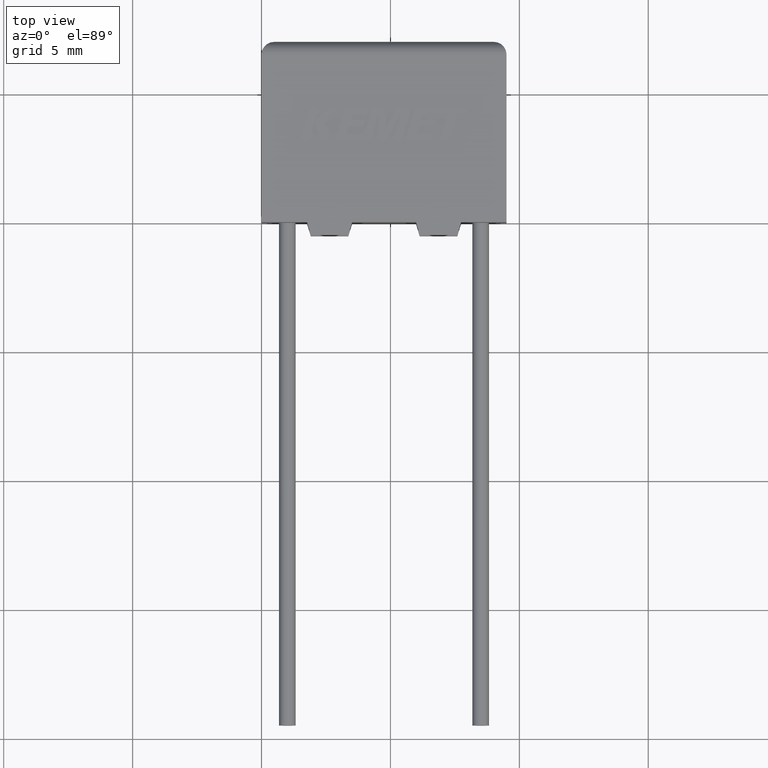
[diagram: clean part render]
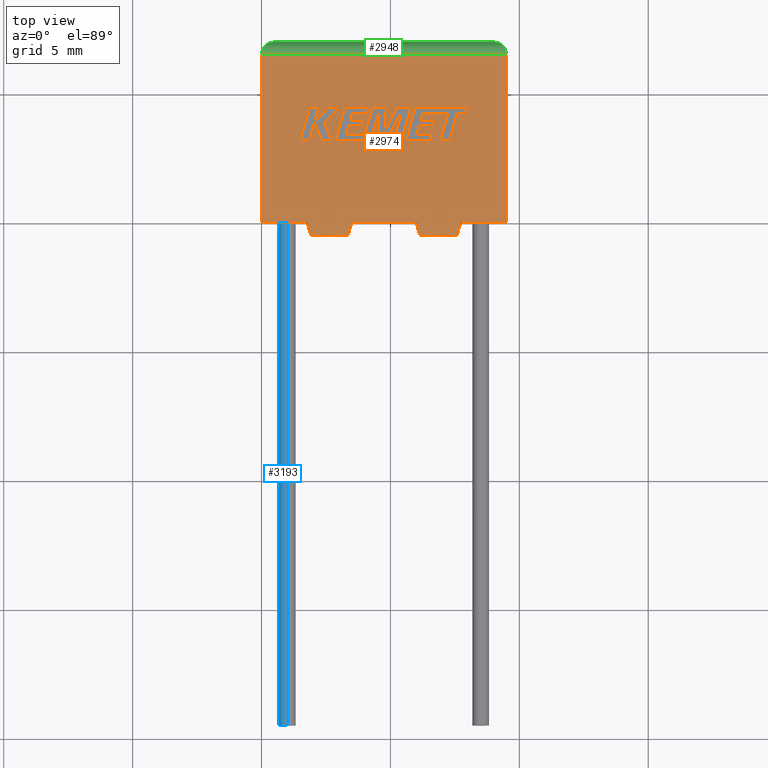
[diagram: same view with three faces highlighted in distinct colors, each labeled with its STEP entity id]
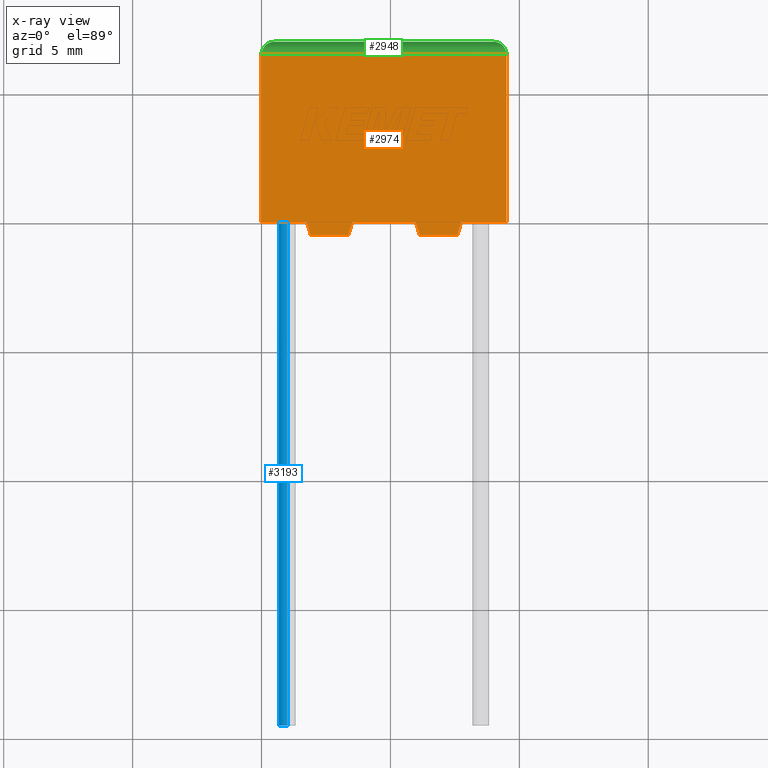
[diagram: x-ray of the same camera — body ghosted, the three highlighted faces saturated]
A machine part, top view with three faces highlighted in distinct colors.
The next image is the same camera in x-ray (body ghosted, the three faces saturated) — at least one of them is partly hidden behind the body in this view.
Their STEP definitions:

[orange] entity #2974 — the highlighted planar face has unit normal (0, 0, -1).
#115 = VECTOR ( 'NONE', #1266, 1000.000000000000200 ) ;
#123 = LINE ( 'NONE', #1476, #703 ) ;
#166 = LINE ( 'NONE', #3141, #626 ) ;
#281 = EDGE_CURVE ( 'NONE', #1757, #2189, #718, .T. ) ;
#412 = CARTESIAN_POINT ( 'NONE',  ( 6.136499999999999800, -0.4999999999999998900, 3.500000000000000000 ) ) ;
#440 = ORIENTED_EDGE ( 'NONE', *, *, #1894, .T. ) ;
#463 = VECTOR ( 'NONE', #2378, 1000.000000000000000 ) ;
#474 = EDGE_CURVE ( 'NONE', #3221, #1064, #586, .T. ) ;
#539 = EDGE_CURVE ( 'NONE', #2337, #2060, #714, .T. ) ;
#548 = CARTESIAN_POINT ( 'NONE',  ( 0.0000000000000000000, 6.500000000000000900, 3.500000000000000000 ) ) ;
#564 = FACE_OUTER_BOUND ( 'NONE', #3053, .T. ) ;
#565 = DIRECTION ( 'NONE',  ( -1.000000000000000000, 0.0000000000000000000, 0.0000000000000000000 ) ) ;
#586 = LINE ( 'NONE', #2530, #2487 ) ;
#626 = VECTOR ( 'NONE', #2862, 1000.000000000000000 ) ;
#651 = EDGE_CURVE ( 'NONE', #2060, #3240, #166, .T. ) ;
#675 = CARTESIAN_POINT ( 'NONE',  ( 3.513500000000000100, 2.151398264402112600E-016, 3.500000000000000000 ) ) ;
#703 = VECTOR ( 'NONE', #2529, 1000.000000000000000 ) ;
#714 = LINE ( 'NONE', #2262, #2645 ) ;
#718 = LINE ( 'NONE', #2134, #1704 ) ;
#755 = VECTOR ( 'NONE', #2920, 1000.000000000000000 ) ;
#762 = CARTESIAN_POINT ( 'NONE',  ( 9.500000000000000000, 6.500000000000000900, 3.500000000000000000 ) ) ;
#805 = AXIS2_PLACEMENT_3D ( 'NONE', #2130, #2386, #1833 ) ;
#860 = PLANE ( 'NONE',  #805 ) ;
#894 = EDGE_CURVE ( 'NONE', #1315, #1505, #2406, .T. ) ;
#899 = ORIENTED_EDGE ( 'NONE', *, *, #1712, .T. ) ;
#906 = CARTESIAN_POINT ( 'NONE',  ( 1.760000000000000000, 0.0000000000000000000, 3.500000000000000000 ) ) ;
#1064 = VERTEX_POINT ( 'NONE', #762 ) ;
#1175 = CARTESIAN_POINT ( 'NONE',  ( 5.986499999999999500, 2.151398264402112600E-016, 3.500000000000000000 ) ) ;
#1185 = VERTEX_POINT ( 'NONE', #2101 ) ;
#1188 = LINE ( 'NONE', #1825, #2281 ) ;
#1189 = EDGE_CURVE ( 'NONE', #1185, #1757, #2753, .T. ) ;
#1207 = LINE ( 'NONE', #1865, #1288 ) ;
#1219 = ORIENTED_EDGE ( 'NONE', *, *, #1189, .F. ) ;
#1266 = DIRECTION ( 'NONE',  ( -0.2873478855663453300, -0.9578262852211513200, 0.0000000000000000000 ) ) ;
#1288 = VECTOR ( 'NONE', #1653, 1000.000000000000000 ) ;
#1315 = VERTEX_POINT ( 'NONE', #1520 ) ;
#1439 = CARTESIAN_POINT ( 'NONE',  ( 7.740000000000000200, 0.0000000000000000000, 3.500000000000000000 ) ) ;
#1476 = CARTESIAN_POINT ( 'NONE',  ( 0.0000000000000000000, 6.500000000000000900, 3.500000000000000000 ) ) ;
#1505 = VERTEX_POINT ( 'NONE', #675 ) ;
#1519 = EDGE_CURVE ( 'NONE', #1505, #2189, #1779, .T. ) ;
#1520 = CARTESIAN_POINT ( 'NONE',  ( 3.363500000000000200, -0.4999999999999998900, 3.500000000000000000 ) ) ;
#1521 = LINE ( 'NONE', #2760, #115 ) ;
#1536 = DIRECTION ( 'NONE',  ( 0.0000000000000000000, 1.000000000000000000, 0.0000000000000000000 ) ) ;
#1653 = DIRECTION ( 'NONE',  ( 1.000000000000000000, 0.0000000000000000000, 0.0000000000000000000 ) ) ;
#1704 = VECTOR ( 'NONE', #2868, 1000.000000000000200 ) ;
#1712 = EDGE_CURVE ( 'NONE', #3240, #2811, #1188, .T. ) ;
#1757 = VERTEX_POINT ( 'NONE', #412 ) ;
#1779 = LINE ( 'NONE', #3152, #755 ) ;
#1804 = ORIENTED_EDGE ( 'NONE', *, *, #2727, .F. ) ;
#1825 = CARTESIAN_POINT ( 'NONE',  ( 1.760000000000000000, 1.077689183249670800E-016, 3.500000000000000000 ) ) ;
#1833 = DIRECTION ( 'NONE',  ( -1.000000000000000000, 0.0000000000000000000, -0.0000000000000000000 ) ) ;
#1859 = ORIENTED_EDGE ( 'NONE', *, *, #474, .T. ) ;
#1865 = CARTESIAN_POINT ( 'NONE',  ( 1.909999999999999900, -0.4999999999999998900, 3.500000000000000000 ) ) ;
#1894 = EDGE_CURVE ( 'NONE', #2520, #3221, #2818, .T. ) ;
#1909 = ORIENTED_EDGE ( 'NONE', *, *, #2831, .T. ) ;
#2009 = ORIENTED_EDGE ( 'NONE', *, *, #651, .T. ) ;
#2011 = VECTOR ( 'NONE', #565, 1000.000000000000000 ) ;
#2019 = DIRECTION ( 'NONE',  ( -0.0000000000000000000, -1.000000000000000000, -0.0000000000000000000 ) ) ;
#2060 = VERTEX_POINT ( 'NONE', #3058 ) ;
#2101 = CARTESIAN_POINT ( 'NONE',  ( 7.589999999999999900, -0.4999999999999998900, 3.500000000000000000 ) ) ;
#2130 = CARTESIAN_POINT ( 'NONE',  ( 0.0000000000000000000, 0.0000000000000000000, 3.500000000000000000 ) ) ;
#2134 = CARTESIAN_POINT ( 'NONE',  ( 6.136499999999999800, -0.4999999999999998900, 3.500000000000000000 ) ) ;
#2173 = ORIENTED_EDGE ( 'NONE', *, *, #281, .F. ) ;
#2189 = VERTEX_POINT ( 'NONE', #1175 ) ;
#2230 = EDGE_CURVE ( 'NONE', #1064, #2337, #123, .T. ) ;
#2262 = CARTESIAN_POINT ( 'NONE',  ( 0.0000000000000000000, 0.0000000000000000000, 3.500000000000000000 ) ) ;
#2275 = ORIENTED_EDGE ( 'NONE', *, *, #1519, .T. ) ;
#2281 = VECTOR ( 'NONE', #2871, 1000.000000000000200 ) ;
#2315 = VECTOR ( 'NONE', #3182, 1000.000000000000200 ) ;
#2319 = ORIENTED_EDGE ( 'NONE', *, *, #2230, .T. ) ;
#2325 = CARTESIAN_POINT ( 'NONE',  ( 7.589999999999999900, -0.4999999999999998900, 3.500000000000000000 ) ) ;
#2337 = VERTEX_POINT ( 'NONE', #548 ) ;
#2378 = DIRECTION ( 'NONE',  ( 1.000000000000000000, 0.0000000000000000000, 0.0000000000000000000 ) ) ;
#2386 = DIRECTION ( 'NONE',  ( 0.0000000000000000000, 0.0000000000000000000, -1.000000000000000000 ) ) ;
#2406 = LINE ( 'NONE', #2930, #2315 ) ;
#2407 = ORIENTED_EDGE ( 'NONE', *, *, #894, .T. ) ;
#2487 = VECTOR ( 'NONE', #1536, 1000.000000000000000 ) ;
#2520 = VERTEX_POINT ( 'NONE', #1439 ) ;
#2529 = DIRECTION ( 'NONE',  ( -1.000000000000000000, 0.0000000000000000000, 0.0000000000000000000 ) ) ;
#2530 = CARTESIAN_POINT ( 'NONE',  ( 9.500000000000000000, 0.0000000000000000000, 3.500000000000000000 ) ) ;
#2645 = VECTOR ( 'NONE', #2019, 1000.000000000000000 ) ;
#2727 = EDGE_CURVE ( 'NONE', #2520, #1185, #1521, .T. ) ;
#2753 = LINE ( 'NONE', #2325, #2011 ) ;
#2760 = CARTESIAN_POINT ( 'NONE',  ( 7.739999999999999300, 1.077689183249670800E-016, 3.500000000000000000 ) ) ;
#2811 = VERTEX_POINT ( 'NONE', #2887 ) ;
#2818 = LINE ( 'NONE', #3068, #463 ) ;
#2831 = EDGE_CURVE ( 'NONE', #2811, #1315, #1207, .T. ) ;
#2862 = DIRECTION ( 'NONE',  ( 1.000000000000000000, 0.0000000000000000000, 0.0000000000000000000 ) ) ;
#2868 = DIRECTION ( 'NONE',  ( -0.2873478855663452700, 0.9578262852211513200, 0.0000000000000000000 ) ) ;
#2871 = DIRECTION ( 'NONE',  ( 0.2873478855663453300, -0.9578262852211513200, 0.0000000000000000000 ) ) ;
#2887 = CARTESIAN_POINT ( 'NONE',  ( 1.909999999999999900, -0.4999999999999998900, 3.500000000000000000 ) ) ;
#2920 = DIRECTION ( 'NONE',  ( 1.000000000000000000, 0.0000000000000000000, 0.0000000000000000000 ) ) ;
#2930 = CARTESIAN_POINT ( 'NONE',  ( 3.363500000000000200, -0.4999999999999998900, 3.500000000000000000 ) ) ;
#2967 = ORIENTED_EDGE ( 'NONE', *, *, #539, .T. ) ;
#2974 = ADVANCED_FACE ( 'NONE', ( #564 ), #860, .F. ) ;
#3034 = CARTESIAN_POINT ( 'NONE',  ( 9.500000000000000000, 0.0000000000000000000, 3.500000000000000000 ) ) ;
#3053 = EDGE_LOOP ( 'NONE', ( #1859, #2319, #2967, #2009, #899, #1909, #2407, #2275, #2173, #1219, #1804, #440 ) ) ;
#3058 = CARTESIAN_POINT ( 'NONE',  ( 0.0000000000000000000, 0.0000000000000000000, 3.500000000000000000 ) ) ;
#3068 = CARTESIAN_POINT ( 'NONE',  ( 0.0000000000000000000, 0.0000000000000000000, 3.500000000000000000 ) ) ;
#3141 = CARTESIAN_POINT ( 'NONE',  ( 0.0000000000000000000, 0.0000000000000000000, 3.500000000000000000 ) ) ;
#3152 = CARTESIAN_POINT ( 'NONE',  ( 0.0000000000000000000, 0.0000000000000000000, 3.500000000000000000 ) ) ;
#3182 = DIRECTION ( 'NONE',  ( 0.2873478855663452700, 0.9578262852211513200, 0.0000000000000000000 ) ) ;
#3221 = VERTEX_POINT ( 'NONE', #3034 ) ;
#3240 = VERTEX_POINT ( 'NONE', #906 ) ;

[blue] entity #3193 — the highlighted cylindrical surface (edge-blend (fillet) strip) has radius 0.325 mm, axis along (-0, 1, -0).
#198 = ORIENTED_EDGE ( 'NONE', *, *, #482, .F. ) ;
#403 = VERTEX_POINT ( 'NONE', #1083 ) ;
#441 = AXIS2_PLACEMENT_3D ( 'NONE', #516, #2259, #1500 ) ;
#482 = EDGE_CURVE ( 'NONE', #677, #2779, #1390, .T. ) ;
#516 = CARTESIAN_POINT ( 'NONE',  ( 0.9999999999999991100, 0.0000000000000000000, 1.749999999999999800 ) ) ;
#532 = DIRECTION ( 'NONE',  ( -0.0000000000000000000, 1.000000000000000000, -0.0000000000000000000 ) ) ;
#608 = LINE ( 'NONE', #2303, #2155 ) ;
#677 = VERTEX_POINT ( 'NONE', #1383 ) ;
#804 = LINE ( 'NONE', #1694, #2959 ) ;
#1012 = AXIS2_PLACEMENT_3D ( 'NONE', #2607, #1092, #2845 ) ;
#1083 = CARTESIAN_POINT ( 'NONE',  ( 0.9999999999999991100, 0.0000000000000000000, 1.424999999999999800 ) ) ;
#1092 = DIRECTION ( 'NONE',  ( -0.0000000000000000000, 1.000000000000000000, -0.0000000000000000000 ) ) ;
#1118 = AXIS2_PLACEMENT_3D ( 'NONE', #1781, #1270, #1256 ) ;
#1229 = CIRCLE ( 'NONE', #441, 0.3249999999999997900 ) ;
#1256 = DIRECTION ( 'NONE',  ( 0.0000000000000000000, 0.0000000000000000000, -1.000000000000000000 ) ) ;
#1270 = DIRECTION ( 'NONE',  ( 0.0000000000000000000, -1.000000000000000000, 0.0000000000000000000 ) ) ;
#1383 = CARTESIAN_POINT ( 'NONE',  ( 0.9999999999999991100, -19.50000000000000000, 2.074999999999999700 ) ) ;
#1390 = CIRCLE ( 'NONE', #1118, 0.3250000000000000100 ) ;
#1430 = ORIENTED_EDGE ( 'NONE', *, *, #2866, .T. ) ;
#1461 = DIRECTION ( 'NONE',  ( -0.0000000000000000000, 1.000000000000000000, -0.0000000000000000000 ) ) ;
#1479 = FACE_OUTER_BOUND ( 'NONE', #2513, .T. ) ;
#1500 = DIRECTION ( 'NONE',  ( 0.0000000000000000000, 0.0000000000000000000, 1.000000000000000000 ) ) ;
#1694 = CARTESIAN_POINT ( 'NONE',  ( 0.9999999999999991100, -19.50000000000000000, 2.074999999999999700 ) ) ;
#1781 = CARTESIAN_POINT ( 'NONE',  ( 0.9999999999999991100, -19.50000000000000000, 1.749999999999999800 ) ) ;
#1944 = CYLINDRICAL_SURFACE ( 'NONE', #1012, 0.3249999999999997900 ) ;
#1993 = EDGE_CURVE ( 'NONE', #2783, #403, #1229, .T. ) ;
#2155 = VECTOR ( 'NONE', #532, 1000.000000000000000 ) ;
#2259 = DIRECTION ( 'NONE',  ( -0.0000000000000000000, -1.000000000000000000, -0.0000000000000000000 ) ) ;
#2303 = CARTESIAN_POINT ( 'NONE',  ( 0.9999999999999991100, -19.50000000000000000, 1.424999999999999800 ) ) ;
#2513 = EDGE_LOOP ( 'NONE', ( #2696, #198, #1430, #3140 ) ) ;
#2607 = CARTESIAN_POINT ( 'NONE',  ( 0.9999999999999991100, -19.50000000000000000, 1.749999999999999800 ) ) ;
#2696 = ORIENTED_EDGE ( 'NONE', *, *, #3037, .F. ) ;
#2779 = VERTEX_POINT ( 'NONE', #3123 ) ;
#2783 = VERTEX_POINT ( 'NONE', #2909 ) ;
#2845 = DIRECTION ( 'NONE',  ( 0.0000000000000000000, 0.0000000000000000000, 1.000000000000000000 ) ) ;
#2866 = EDGE_CURVE ( 'NONE', #677, #2783, #804, .T. ) ;
#2909 = CARTESIAN_POINT ( 'NONE',  ( 0.9999999999999991100, 0.0000000000000000000, 2.074999999999999700 ) ) ;
#2959 = VECTOR ( 'NONE', #1461, 1000.000000000000000 ) ;
#3037 = EDGE_CURVE ( 'NONE', #2779, #403, #608, .T. ) ;
#3123 = CARTESIAN_POINT ( 'NONE',  ( 0.9999999999999991100, -19.50000000000000000, 1.424999999999999800 ) ) ;
#3140 = ORIENTED_EDGE ( 'NONE', *, *, #1993, .T. ) ;
#3193 = ADVANCED_FACE ( 'NONE', ( #1479 ), #1944, .T. ) ;

[green] entity #2948 — the highlighted cylindrical surface (edge-blend (fillet) strip) has radius 0.5 mm, axis along (-1, 0, 0).
#123 = LINE ( 'NONE', #1476, #703 ) ;
#184 = CARTESIAN_POINT ( 'NONE',  ( 0.5000000000000000000, 7.000000000000000000, 3.000000000000000000 ) ) ;
#192 = VECTOR ( 'NONE', #2268, 1000.000000000000000 ) ;
#264 = CARTESIAN_POINT ( 'NONE',  ( 0.5000000000000000000, 7.000000000000000000, 3.000000000000000000 ) ) ;
#306 = ORIENTED_EDGE ( 'NONE', *, *, #2617, .F. ) ;
#405 = ORIENTED_EDGE ( 'NONE', *, *, #3250, .T. ) ;
#414 = LINE ( 'NONE', #2570, #192 ) ;
#507 = CARTESIAN_POINT ( 'NONE',  ( 1.442892915397364600E-016, 6.792893218813450300, 3.499999999999999100 ) ) ;
#548 = CARTESIAN_POINT ( 'NONE',  ( 0.0000000000000000000, 6.500000000000000900, 3.500000000000000000 ) ) ;
#557 = EDGE_CURVE ( 'NONE', #1013, #1064, #1187, .T. ) ;
#703 = VECTOR ( 'NONE', #2529, 1000.000000000000000 ) ;
#762 = CARTESIAN_POINT ( 'NONE',  ( 9.500000000000000000, 6.500000000000000900, 3.500000000000000000 ) ) ;
#796 = CARTESIAN_POINT ( 'NONE',  ( 0.2071067811865475200, 6.999999999999998200, 3.292893218813452500 ) ) ;
#950 = ORIENTED_EDGE ( 'NONE', *, *, #557, .F. ) ;
#1013 = VERTEX_POINT ( 'NONE', #2712 ) ;
#1036 = DIRECTION ( 'NONE',  ( 0.0000000000000000000, 0.0000000000000000000, 1.000000000000000000 ) ) ;
#1064 = VERTEX_POINT ( 'NONE', #762 ) ;
#1187 =( BOUNDED_CURVE ( )  B_SPLINE_CURVE ( 3, ( #3001, #1767, #2042, #2283 ),
 .UNSPECIFIED., .F., .F. ) 
 B_SPLINE_CURVE_WITH_KNOTS ( ( 4, 4 ),
 ( 1.570796326794896600, 3.141592653589793100 ),
 .UNSPECIFIED. ) 
 CURVE ( )  GEOMETRIC_REPRESENTATION_ITEM ( )  RATIONAL_B_SPLINE_CURVE ( ( 1.000000000000000000, 0.8047378541243649400, 0.8047378541243649400, 1.000000000000000000 ) ) 
 REPRESENTATION_ITEM ( '' )  );
#1476 = CARTESIAN_POINT ( 'NONE',  ( 0.0000000000000000000, 6.500000000000000900, 3.500000000000000000 ) ) ;
#1684 = CARTESIAN_POINT ( 'NONE',  ( 0.0000000000000000000, 6.500000000000000900, 3.000000000000000000 ) ) ;
#1737 = DIRECTION ( 'NONE',  ( -1.000000000000000000, 0.0000000000000000000, 0.0000000000000000000 ) ) ;
#1767 = CARTESIAN_POINT ( 'NONE',  ( 9.292893218813452100, 6.999999999999998200, 3.292893218813452500 ) ) ;
#1912 = FACE_OUTER_BOUND ( 'NONE', #2707, .T. ) ;
#1947 = CYLINDRICAL_SURFACE ( 'NONE', #3155, 0.5000000000000000000 ) ;
#2021 = CARTESIAN_POINT ( 'NONE',  ( 0.0000000000000000000, 6.500000000000000900, 3.500000000000000000 ) ) ;
#2042 = CARTESIAN_POINT ( 'NONE',  ( 9.500000000000000000, 6.792893218813452100, 3.499999999999999100 ) ) ;
#2230 = EDGE_CURVE ( 'NONE', #1064, #2337, #123, .T. ) ;
#2238 =( BOUNDED_CURVE ( )  B_SPLINE_CURVE ( 3, ( #264, #796, #507, #2021 ),
 .UNSPECIFIED., .F., .T. ) 
 B_SPLINE_CURVE_WITH_KNOTS ( ( 4, 4 ),
 ( 1.570796326794896800, 3.141592653589793100 ),
 .UNSPECIFIED. ) 
 CURVE ( )  GEOMETRIC_REPRESENTATION_ITEM ( )  RATIONAL_B_SPLINE_CURVE ( ( 1.000000000000000000, 0.8047378541243650500, 0.8047378541243650500, 1.000000000000000000 ) ) 
 REPRESENTATION_ITEM ( '' )  );
#2268 = DIRECTION ( 'NONE',  ( 1.000000000000000000, -0.0000000000000000000, -0.0000000000000000000 ) ) ;
#2283 = CARTESIAN_POINT ( 'NONE',  ( 9.500000000000000000, 6.500000000000000900, 3.500000000000000000 ) ) ;
#2337 = VERTEX_POINT ( 'NONE', #548 ) ;
#2529 = DIRECTION ( 'NONE',  ( -1.000000000000000000, 0.0000000000000000000, 0.0000000000000000000 ) ) ;
#2562 = VERTEX_POINT ( 'NONE', #184 ) ;
#2570 = CARTESIAN_POINT ( 'NONE',  ( 0.0000000000000000000, 7.000000000000000000, 3.000000000000000000 ) ) ;
#2617 = EDGE_CURVE ( 'NONE', #2562, #1013, #414, .T. ) ;
#2661 = ORIENTED_EDGE ( 'NONE', *, *, #2230, .F. ) ;
#2707 = EDGE_LOOP ( 'NONE', ( #405, #2661, #950, #306 ) ) ;
#2712 = CARTESIAN_POINT ( 'NONE',  ( 9.000000000000000000, 7.000000000000000000, 3.000000000000000000 ) ) ;
#2948 = ADVANCED_FACE ( 'NONE', ( #1912 ), #1947, .T. ) ;
#3001 = CARTESIAN_POINT ( 'NONE',  ( 9.000000000000000000, 7.000000000000000000, 3.000000000000000000 ) ) ;
#3155 = AXIS2_PLACEMENT_3D ( 'NONE', #1684, #1737, #1036 ) ;
#3250 = EDGE_CURVE ( 'NONE', #2562, #2337, #2238, .T. ) ;